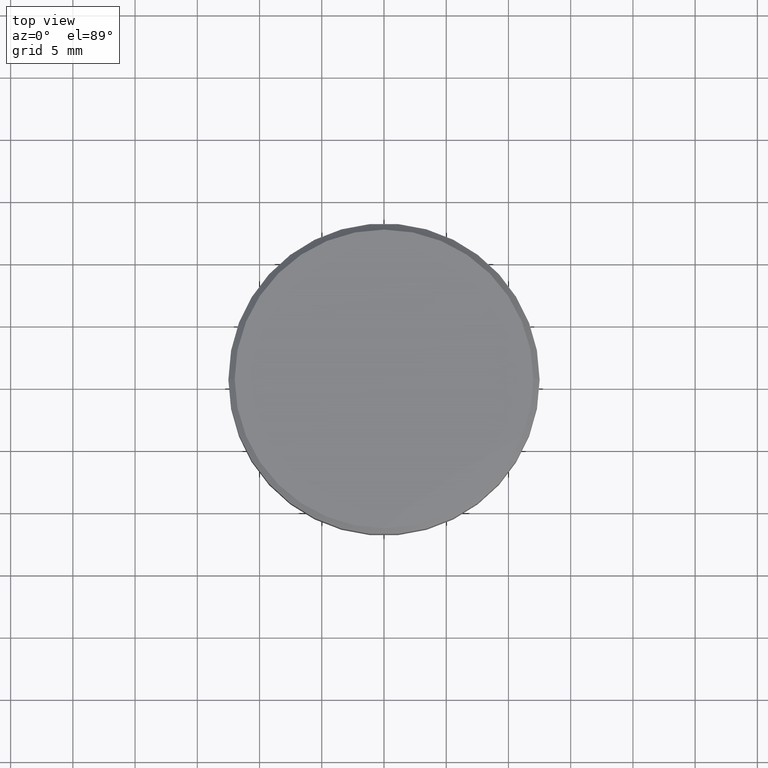
[diagram: clean part render]
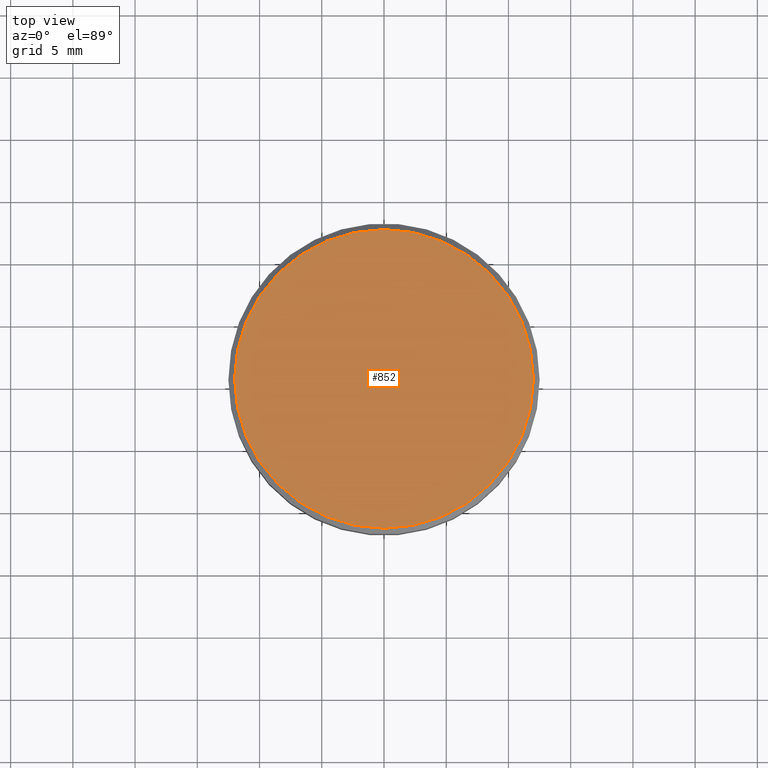
[diagram: same view with one face highlighted and labeled with its STEP entity id]
A machine part, top view. The second image highlights one B-rep face of the part: STEP entity #852.
In plain terms, the highlighted planar face has unit normal (0, -0, 1).
Its self-contained STEP definition (entity closure, byte-faithful):
#5 = EDGE_CURVE ( 'NONE', #643, #193, #229, .T. ) ;
#75 = DIRECTION ( 'NONE',  ( -0.000000000000000000, -0.000000000000000000, 1.000000000000000000 ) ) ;
#193 = VERTEX_POINT ( 'NONE', #752 ) ;
#228 = CARTESIAN_POINT ( 'NONE',  ( 11.99999999999998934, 1.500192328955507143E-15, 0.000000000000000000 ) ) ;
#229 = CIRCLE ( 'NONE', #861, 11.99999999999998934 ) ;
#239 = DIRECTION ( 'NONE',  ( 1.000000000000000000, 0.000000000000000000, 0.000000000000000000 ) ) ;
#252 = PLANE ( 'NONE',  #1020 ) ;
#261 = CIRCLE ( 'NONE', #764, 11.99999999999998934 ) ;
#286 = DIRECTION ( 'NONE',  ( 1.000000000000000000, 0.000000000000000000, 0.000000000000000000 ) ) ;
#353 = CARTESIAN_POINT ( 'NONE',  ( 0.000000000000000000, 0.000000000000000000, 0.000000000000000000 ) ) ;
#405 = EDGE_LOOP ( 'NONE', ( #763, #1165 ) ) ;
#558 = DIRECTION ( 'NONE',  ( -0.000000000000000000, -0.000000000000000000, 1.000000000000000000 ) ) ;
#643 = VERTEX_POINT ( 'NONE', #228 ) ;
#752 = CARTESIAN_POINT ( 'NONE',  ( -11.99999999999998934, 0.000000000000000000, 0.000000000000000000 ) ) ;
#763 = ORIENTED_EDGE ( 'NONE', *, *, #790, .T. ) ;
#764 = AXIS2_PLACEMENT_3D ( 'NONE', #353, #75, #239 ) ;
#790 = EDGE_CURVE ( 'NONE', #193, #643, #261, .T. ) ;
#852 = ADVANCED_FACE ( 'NONE', ( #965 ), #252, .T. ) ;
#861 = AXIS2_PLACEMENT_3D ( 'NONE', #991, #558, #286 ) ;
#884 = DIRECTION ( 'NONE',  ( 0.000000000000000000, -0.000000000000000000, 1.000000000000000000 ) ) ;
#965 = FACE_OUTER_BOUND ( 'NONE', #405, .T. ) ;
#991 = CARTESIAN_POINT ( 'NONE',  ( 0.000000000000000000, 0.000000000000000000, 0.000000000000000000 ) ) ;
#1020 = AXIS2_PLACEMENT_3D ( 'NONE', #1058, #884, #1051 ) ;
#1051 = DIRECTION ( 'NONE',  ( 1.000000000000000000, 0.000000000000000000, 0.000000000000000000 ) ) ;
#1058 = CARTESIAN_POINT ( 'NONE',  ( 0.000000000000000000, 0.000000000000000000, 0.000000000000000000 ) ) ;
#1165 = ORIENTED_EDGE ( 'NONE', *, *, #5, .T. ) ;